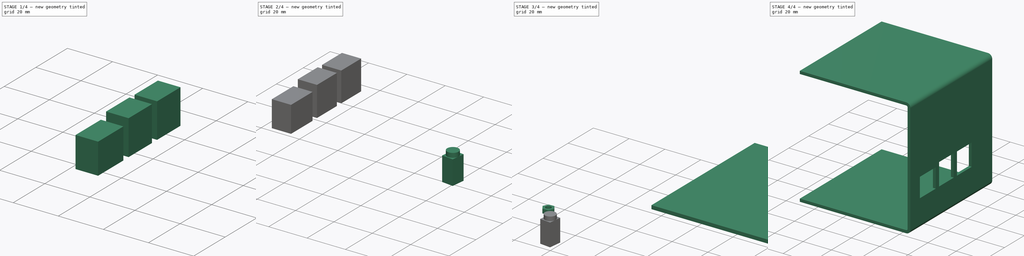
[diagram: build sequence overview — one tinted view per stage of 4, left to right]
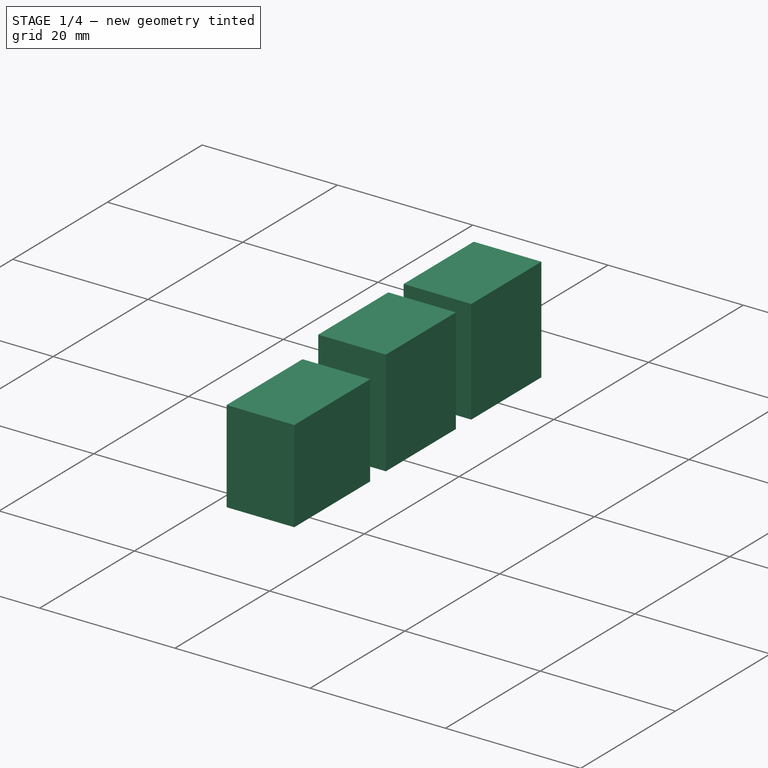
[diagram: stage 1 of 4 — iso view after this stage's code; geometry added in this stage tinted green]
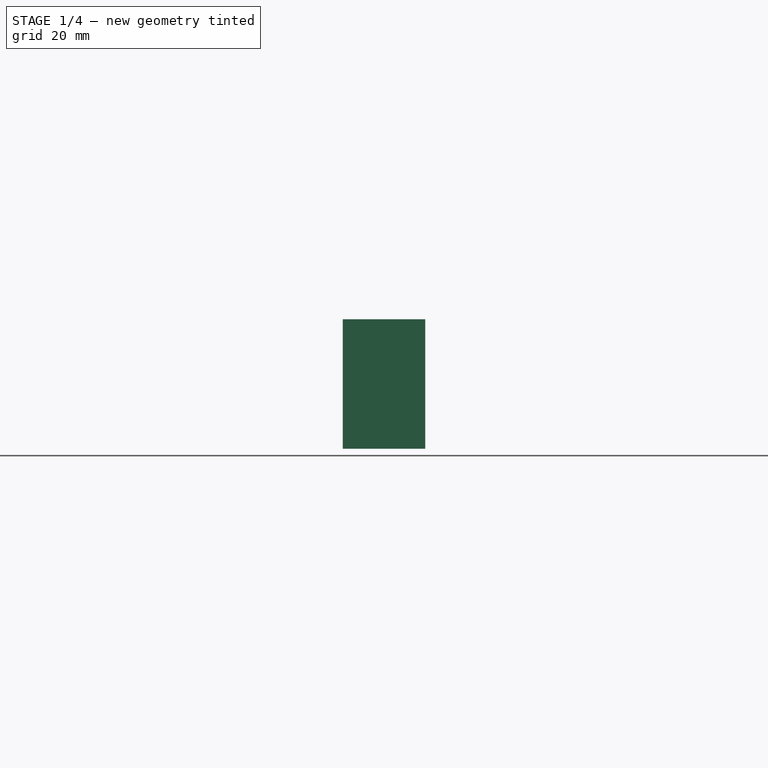
[diagram: stage 1 of 4 — front view after this stage's code; geometry added in this stage tinted green]
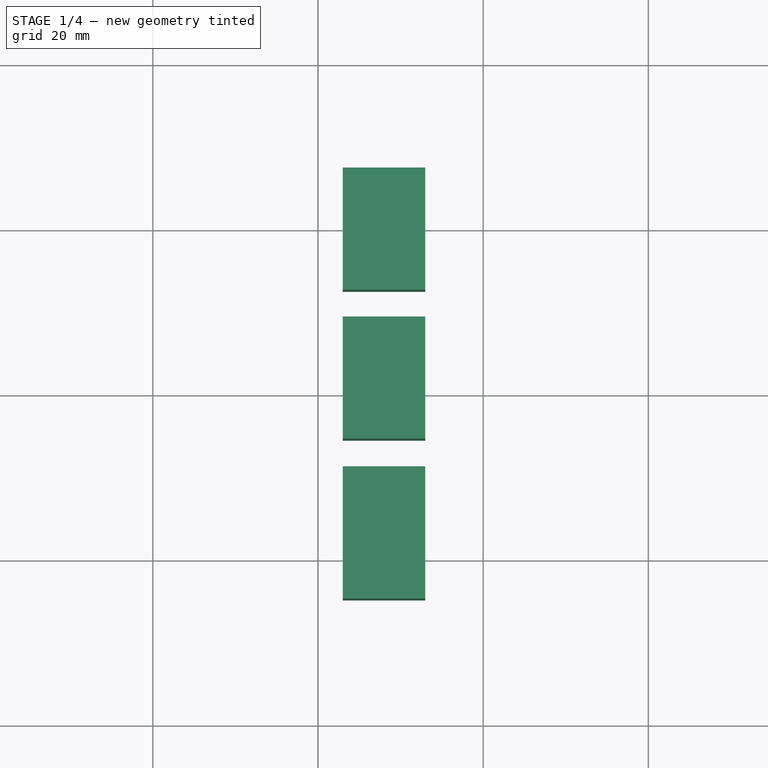
[diagram: stage 1 of 4 — top view after this stage's code; geometry added in this stage tinted green]
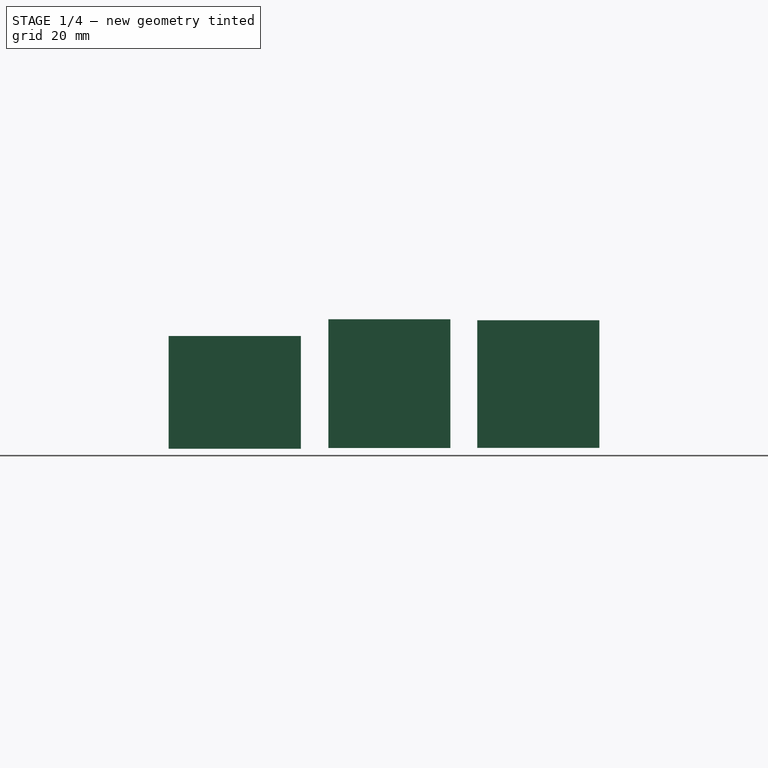
[diagram: stage 1 of 4 — right view after this stage's code; geometry added in this stage tinted green]
FCSTD DOCUMENT  (FreeCAD 0.17R5235 (Git shallow))
Label: assembly
License: All rights reserved
LicenseURL: http://en.wikipedia.org/wiki/All_rights_reserved
objects: App::FeaturePython×38, Part::FeaturePython×31, Sketcher::SketchObject×4, App::Link×3, PartDesign::Pad×2, PartDesign::FeaturePython×2, PartDesign::Body×2, TechDraw::DrawViewDimension×2, Part::Box×1, Part::Cylinder×1, Part::Extrusion×1, PartDesign::SubShapeBinder×1, Part::Cut×1, Spreadsheet::Sheet×1, TechDraw::DrawSVGTemplate×1, Part::Feature×1, TechDraw::DrawViewPart×1, TechDraw::DrawPage×1
note: 46 computed .brp shape members not serialized (recipe doc carries the construction recipe); baked Part::Feature solids carry a one-line shape summary decoded from their .brp

FEATURE [Part::FeaturePython] case2_01  # a2plus imported part (geometry in sourceFile) (typed FeaturePython)
  fixedPosition = true
  sourceFile = <userpath>/curr-projects/scada-gateway-hardware/case2/case2.fcstd
  timeLastImport = 1.52354e+09
  updateColors = true
FEATURE [Part::FeaturePython] Parts002  # WARN: FeaturePython — macro-defined, semantics opaque (R4)
  Group = -> [Box,Cylinder]
  GroupMode = 0
FEATURE [App::FeaturePython] ElementLink014  # link proxy (typed FeaturePython)
  LinkTransform = true
  LinkedObject = -> Elements002 [$Element019.]
FEATURE [Part::FeaturePython] Element019  # link proxy (typed FeaturePython)
  Detach = false
  LinkTransform = true
  LinkedObject = -> Parts002 [Cylinder.Face3]
FEATURE [App::FeaturePython] ElementLink015  # link proxy (typed FeaturePython)
  LinkTransform = true
  LinkedObject = -> Elements002 [$Element020.]
FEATURE [App::FeaturePython] Constraint007  label="PlaneCoincident004"  # WARN: FeaturePython — macro-defined, semantics opaque (R4)
  Angle = 0
  AnglePitch = 0
  AngleRoll = 0
  Cascade = false
  Disabled = false
  Group = -> [ElementLink014,ElementLink015]
  LockAngle = false
  Multiply = false
  OffsetX = 0
  OffsetY = 0
  _ConstraintType = 35
FEATURE [App::FeaturePython] Constraints002  # WARN: FeaturePython — macro-defined, semantics opaque (R4)
  Group = -> [Constraint007]
FEATURE [Part::FeaturePython] Element020  # link proxy (typed FeaturePython)
  Detach = false
  LinkTransform = true
  LinkedObject = -> Parts002 [Box.Face6]
FEATURE [App::FeaturePython] ElementLink016  # link proxy (typed FeaturePython)
  LinkTransform = true
  LinkedObject = -> Parts [Assembly002.Elements002.$Element021.]
FEATURE [Part::FeaturePython] Element021  # link proxy (typed FeaturePython)
  Detach = false
  LinkTransform = true
  LinkedObject = -> Parts002 [Box.Face1]
FEATURE [App::FeaturePython] ElementLink017  # link proxy (typed FeaturePython)
  LinkTransform = true
  LinkedObject = -> Elements [$Element002.]
FEATURE [App::FeaturePython] Constraint008  label="PlaneAlignment002"  # WARN: FeaturePython — macro-defined, semantics opaque (R4)
  Angle = 0
  AnglePitch = 0
  AngleRoll = 0
  Cascade = false
  Disabled = false
  Group = -> [ElementLink016,ElementLink017]
  LockAngle = false
  _ConstraintType = 37
FEATURE [App::FeaturePython] ElementLink018  # link proxy (typed FeaturePython)
  LinkTransform = true
  LinkedObject = -> Parts [Assembly002.Elements002.$Element020.]
FEATURE [App::FeaturePython] ElementLink019  # link proxy (typed FeaturePython)
  LinkTransform = true
  LinkedObject = -> Elements [$Element022.]
FEATURE [App::FeaturePython] Constraint009  label="PlaneAlignment003"  # WARN: FeaturePython — macro-defined, semantics opaque (R4)
  Angle = 0
  AnglePitch = 0
  AngleRoll = 0
  Cascade = false
  Disabled = false
  Group = -> [ElementLink018,ElementLink019]
  LockAngle = false
  _ConstraintType = 37
FEATURE [Part::FeaturePython] Element022  # link proxy (typed FeaturePython)
  Detach = false
  LinkTransform = true
  LinkedObject = -> Parts [case2_01.Face78]
FEATURE [App::FeaturePython] ElementLink020  # link proxy (typed FeaturePython)
  LinkTransform = true
  LinkedObject = -> Parts [Assembly002.Elements002.$Element023.]
FEATURE [Part::FeaturePython] Element023  # link proxy (typed FeaturePython)
  Detach = false
  LinkTransform = true
  LinkedObject = -> Parts002 [Box.Face4]
FEATURE [App::FeaturePython] Elements002  # WARN: FeaturePython — macro-defined, semantics opaque (R4)
  Group = -> [Element019,Element020,Element021,Element023]
FEATURE [Part::FeaturePython] Assembly002  label="audio_jack"  # WARN: FeaturePython — macro-defined, semantics opaque (R4)
  AutoRelax = false
  BuildShape = 0
  Freeze = false
  Group = -> [Constraints002,Elements002,Parts002]
  Placement = pos=(-105.6,-27.0517,4.6) rot=(-0.532824,0.598372,-0.598372;4.12071rad)
  Verbose = false
  _SolverType = 1
FEATURE [App::FeaturePython] ElementLink021  # link proxy (typed FeaturePython)
  LinkTransform = true
  LinkedObject = -> Elements [$Element024.]
FEATURE [App::FeaturePython] Constraint010  label="PlaneAlignment004"  # WARN: FeaturePython — macro-defined, semantics opaque (R4)
  Angle = 0
  AnglePitch = 0
  AngleRoll = 0
  Cascade = false
  Disabled = false
  Group = -> [ElementLink020,ElementLink021]
  LockAngle = false
  _ConstraintType = 37
FEATURE [Part::FeaturePython] Element024  # link proxy (typed FeaturePython)
  Detach = false
  LinkTransform = true
  LinkedObject = -> Parts [case2_01.Face132]
FEATURE [App::FeaturePython] ElementLink023  # link proxy (typed FeaturePython)
  LinkTransform = true
  LinkedObject = -> Elements [$Element008.]
FEATURE [App::FeaturePython] ElementLink022  # link proxy (typed FeaturePython)
  LinkTransform = true
  LinkedObject = -> Elements [$Element025.]
FEATURE [App::FeaturePython] Constraint011  label="PlaneAlignment005"  # WARN: FeaturePython — macro-defined, semantics opaque (R4)
  Angle = 0
  AnglePitch = 0
  AngleRoll = 0
  Cascade = false
  Disabled = false
  Group = -> [ElementLink022,ElementLink023]
  LockAngle = false
  _ConstraintType = 37
FEATURE [App::FeaturePython] Constraints  # WARN: FeaturePython — macro-defined, semantics opaque (R4)
  Group = -> [Constraint001,Constraint,Constraint003,Constraint004,Constraint005,Constraint006,Constraint008,Constraint009,Constraint010,Constraint011]
FEATURE [Part::FeaturePython] Element025  # link proxy (typed FeaturePython)
  Detach = false
  LinkTransform = true
  LinkedObject = -> Parts [Body.Bend001.Face12]
FEATURE [App::FeaturePython] Elements  # WARN: FeaturePython — macro-defined, semantics opaque (R4)
  Group = -> [Element,Element001,Element002,Element003,Element004,Element005,Element008,Element009,Element010,Element011,Element012,Element013,Element014,Element015,Element016,Element017,Element018,Element022,Element024,Element025]
FEATURE [Sketcher::SketchObject] Sketch002
  LastGeoID = 12
  MapMode = 5
  Placement = pos=(-72.0064,0,0) rot=(0.57735,0.57735,0.57735;2.0944rad)
  Support = -> [case2_01]
  sketch-geometry (12):
    g0: LineSegment StartX=-24.7907 StartY=15.0855 StartZ=0 EndX=-8.76421 EndY=15.0855 EndZ=0
    g1: LineSegment StartX=-8.76421 StartY=15.0855 StartZ=0 EndX=-8.76421 EndY=1.42918 EndZ=0
    g2: LineSegment StartX=-8.76421 StartY=1.42918 StartZ=0 EndX=-24.7907 EndY=1.42918 EndZ=0
    g3: LineSegment StartX=-24.7907 StartY=1.42918 StartZ=0 EndX=-24.7907 EndY=15.0855 EndZ=0
    g4: LineSegment StartX=-5.4462 StartY=17.1021 StartZ=0 EndX=9.33933 EndY=17.1021 EndZ=0
    g5: LineSegment StartX=9.33933 StartY=17.1021 StartZ=0 EndX=9.33933 EndY=1.51377 EndZ=0
    g6: LineSegment StartX=9.33933 StartY=1.51377 StartZ=0 EndX=-5.4462 EndY=1.51377 EndZ=0
    g7: LineSegment StartX=-5.4462 StartY=1.51377 StartZ=0 EndX=-5.4462 EndY=17.1021 EndZ=0
    g8: LineSegment StartX=12.5848 StartY=16.9799 StartZ=0 EndX=27.3824 EndY=16.9799 EndZ=0
    g9: LineSegment StartX=27.3824 StartY=16.9799 StartZ=0 EndX=27.3824 EndY=1.53272 EndZ=0
    g10: LineSegment StartX=27.3824 StartY=1.53272 StartZ=0 EndX=12.5848 EndY=1.53272 EndZ=0
    g11: LineSegment StartX=12.5848 StartY=1.53272 StartZ=0 EndX=12.5848 EndY=16.9799 EndZ=0
  constraints (24):
    c: Coincident(g0,g1)
    c: Coincident(g1,g2)
    c: Coincident(g2,g3)
    c: Coincident(g3,g0)
    c: Horizontal(g0)
    c: Horizontal(g2)
    c: Vertical(g1)
    c: Vertical(g3)
    c: Coincident(g4,g5)
    c: Coincident(g5,g6)
    c: Coincident(g6,g7)
    c: Coincident(g7,g4)
    c: Horizontal(g4)
    c: Horizontal(g6)
    c: Vertical(g5)
    c: Vertical(g7)
    c: Coincident(g8,g9)
    c: Coincident(g9,g10)
    c: Coincident(g10,g11)
    c: Coincident(g11,g8)
    c: Horizontal(g8)
    c: Horizontal(g10)
    c: Vertical(g9)
    c: Vertical(g11)
FEATURE [Part::Extrusion] Extrude  label="panel-cut"
  Base = -> Sketch002
  Dir = (1,0,0)
  DirMode = 2
  FaceMakerClass = Part::FaceMakerBullseye
  LengthFwd = 10
  LengthRev = 0
  Solid = true
  Symmetric = true
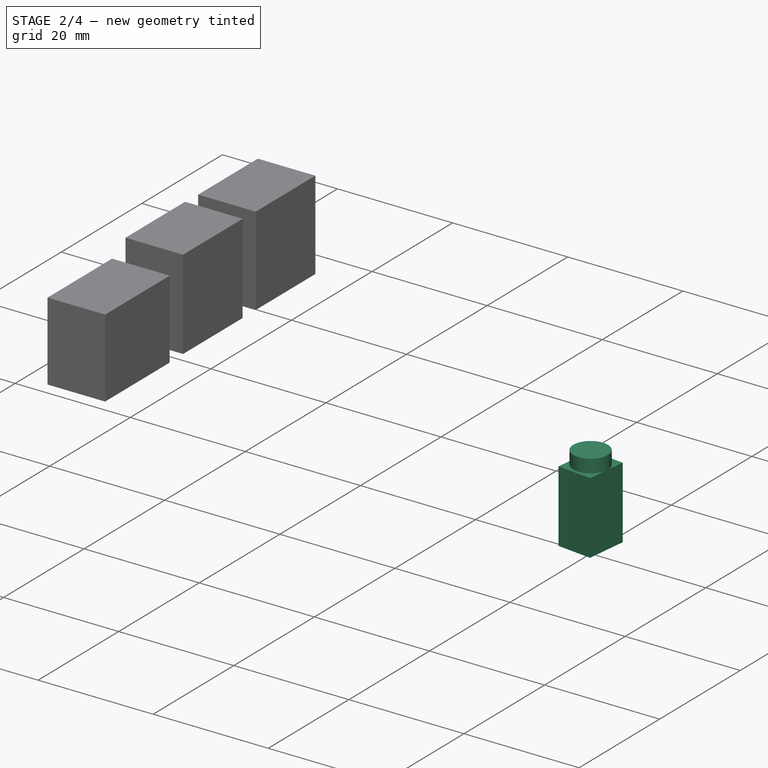
[diagram: stage 2 of 4 — iso view after this stage's code; geometry added in this stage tinted green]
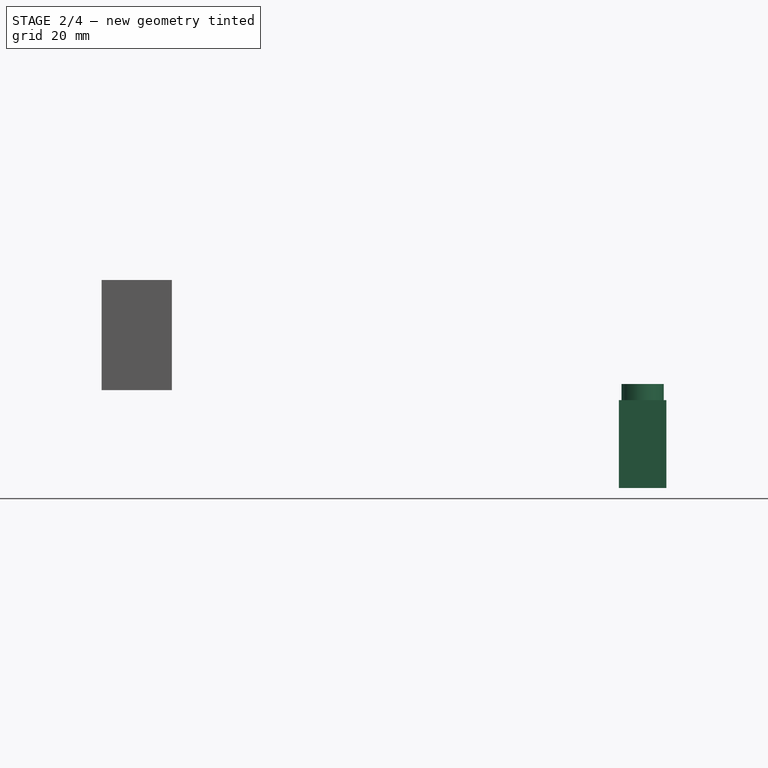
[diagram: stage 2 of 4 — front view after this stage's code; geometry added in this stage tinted green]
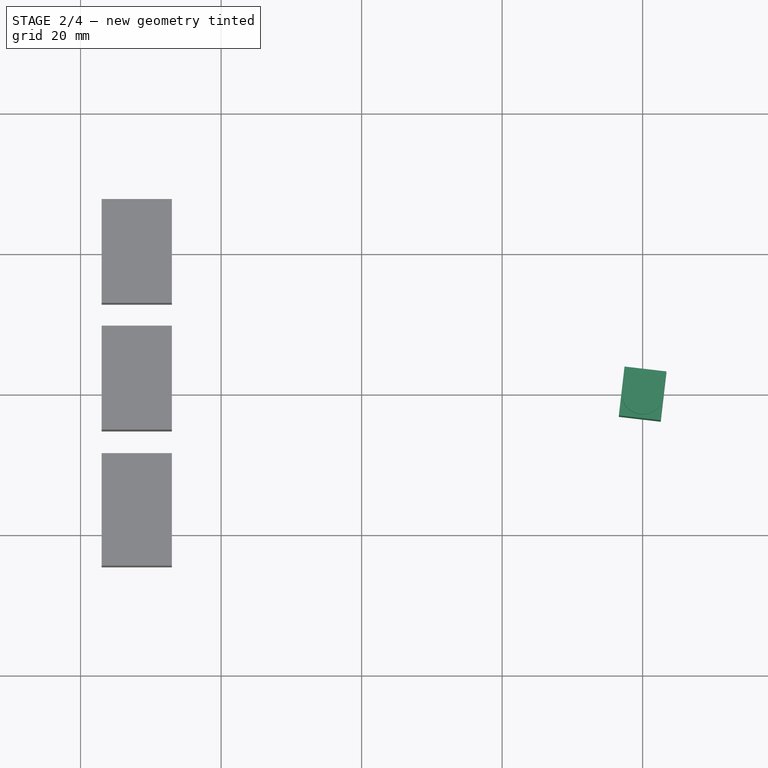
[diagram: stage 2 of 4 — top view after this stage's code; geometry added in this stage tinted green]
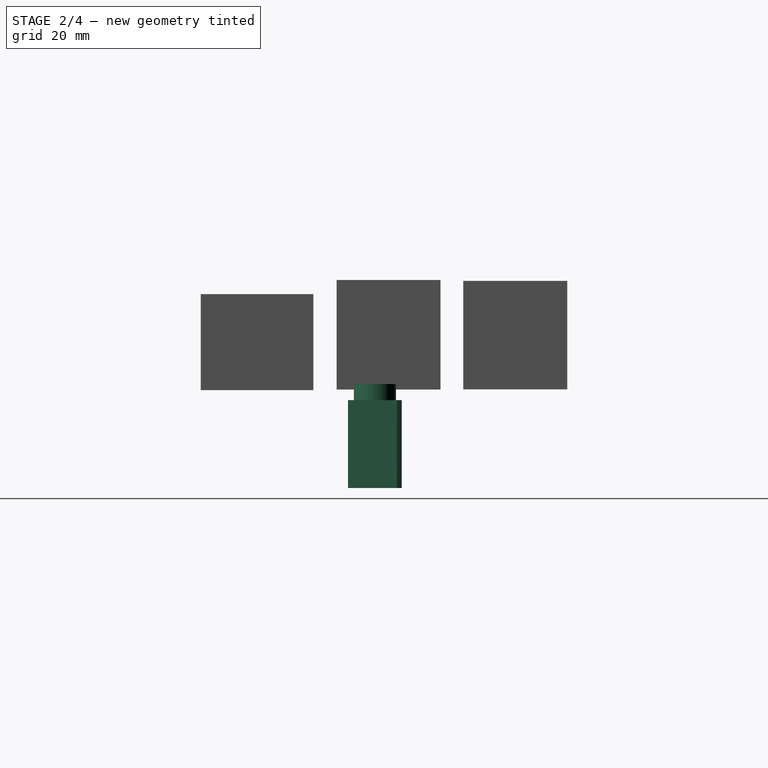
[diagram: stage 2 of 4 — right view after this stage's code; geometry added in this stage tinted green]
FEATURE [PartDesign::Body] Body  label="Panel"
  Group = -> [Sketch,Pad,Bend,Bend001]
  Origin = -> Origin
  Placement = pos=(-72.1004,-14.9704,-4.29313) rot=(0,-1,0;1.5708rad)
  Tip = -> Bend001
FEATURE [Part::FeaturePython] Element  # link proxy (typed FeaturePython)
  Detach = false
  LinkTransform = true
  LinkedObject = -> Parts [case2_01.Face1472]
FEATURE [Part::FeaturePython] Element001  # link proxy (typed FeaturePython)
  Detach = false
  LinkTransform = true
  LinkedObject = -> Parts [Body.Bend001.Face8]
FEATURE [App::FeaturePython] ElementLink002  # link proxy (typed FeaturePython)
  LinkTransform = true
  LinkedObject = -> Elements [$Element002.]
FEATURE [App::FeaturePython] Constraint001  label="Locked"  # WARN: FeaturePython — macro-defined, semantics opaque (R4)
  Disabled = false
  Group = -> [ElementLink002]
  _ConstraintType = 0
FEATURE [Part::FeaturePython] Element002  # link proxy (typed FeaturePython)
  Detach = false
  LinkTransform = true
  LinkedObject = -> Parts [case2_01.Face17]
FEATURE [Part::FeaturePython] Element003  # link proxy (typed FeaturePython)
  Detach = false
  LinkTransform = true
  LinkedObject = -> Parts [Body.Bend001.Face4]
FEATURE [Part::FeaturePython] Element004  # link proxy (typed FeaturePython)
  Detach = false
  LinkTransform = true
  LinkedObject = -> Parts [case2_01.Face1326]
FEATURE [Part::FeaturePython] Element005  # link proxy (typed FeaturePython)
  Detach = false
  LinkTransform = true
  LinkedObject = -> Parts [case2_01.Face1512]
FEATURE [Part::FeaturePython] Element008  # link proxy (typed FeaturePython)
  Detach = false
  LinkTransform = true
  LinkedObject = -> Parts [case2_01.Face40]
FEATURE [Part::Box] Box  label="mycube"
  AttacherType = Attacher::AttachEngine3D
  Height = 12.5
  Length = 6
  Placement = pos=(-3.38418,-3.13007,-12.5) rot=(0,0,-1;0.115761rad)
  Width = 7
FEATURE [PartDesign::Body] Body001  label="3mm_nut"
  Group = -> [Sketch001,Pad001]
  Origin = -> Origin001
  Placement = pos=(-148.743,-24.0479,-2.35) rot=(0,0,1;0.762604rad)
  Tip = -> Pad001
FEATURE [App::Link] Link002  label="Link002_3mm_nut"
  LinkPlacement = pos=(-92.2552,-27.8763,-2.35) rot=(0,0,1;0.154596rad)
  LinkedObject = -> Body001
  Placement = pos=(-92.2552,-27.8763,-2.35) rot=(0,0,1;0.154596rad)
FEATURE [App::Link] Link003  label="Link003_3mm_nut"
  LinkPlacement = pos=(-155.143,18.588,-2.35) rot=(0,0,-1;0.66938rad)
  LinkedObject = -> Body001
  Placement = pos=(-155.143,18.588,-2.35) rot=(0,0,-1;0.66938rad)
FEATURE [Part::FeaturePython] Element010  # link proxy (typed FeaturePython)
  Detach = false
  LinkTransform = true
  LinkedObject = -> Parts [Body001.Pad001.Face9]
FEATURE [App::FeaturePython] ElementLink006  # link proxy (typed FeaturePython)
  LinkTransform = true
  LinkedObject = -> Elements [$Element011.]
FEATURE [Part::FeaturePython] Element011  # link proxy (typed FeaturePython)
  Detach = false
  LinkTransform = true
  LinkedObject = -> Parts [Body001.Pad001.Edge21]
FEATURE [App::FeaturePython] ElementLink007  # link proxy (typed FeaturePython)
  LinkTransform = true
  LinkedObject = -> Elements [$Element012.]
FEATURE [App::FeaturePython] Constraint003  label="PlaneCoincident"  # WARN: FeaturePython — macro-defined, semantics opaque (R4)
  Angle = 0
  AnglePitch = 0
  AngleRoll = 0
  Cascade = false
  Disabled = false
  Group = -> [ElementLink006,ElementLink007]
  LockAngle = false
  Multiply = false
  OffsetX = 0
  OffsetY = 0
  _ConstraintType = 35
FEATURE [Part::FeaturePython] Element012  # link proxy (typed FeaturePython)
  Detach = false
  LinkTransform = true
  LinkedObject = -> Parts [case2_01.Edge5100]
FEATURE [App::FeaturePython] ElementLink008  # link proxy (typed FeaturePython)
  LinkTransform = true
  LinkedObject = -> Elements [$Element013.]
FEATURE [Part::FeaturePython] Element013  # link proxy (typed FeaturePython)
  Detach = false
  LinkTransform = true
  LinkedObject = -> Parts [Link002.Pad001.Edge21]
FEATURE [App::FeaturePython] ElementLink009  # link proxy (typed FeaturePython)
  LinkTransform = true
  LinkedObject = -> Elements [$Element014.]
FEATURE [App::FeaturePython] Constraint004  label="PlaneCoincident001"  # WARN: FeaturePython — macro-defined, semantics opaque (R4)
  Angle = 0
  AnglePitch = 0
  AngleRoll = 0
  Cascade = false
  Disabled = false
  Group = -> [ElementLink008,ElementLink009]
  LockAngle = false
  Multiply = false
  OffsetX = 0
  OffsetY = 0
  _ConstraintType = 35
FEATURE [Part::FeaturePython] Element014  # link proxy (typed FeaturePython)
  Detach = false
  LinkTransform = true
  LinkedObject = -> Parts [case2_01.Edge5028]
FEATURE [App::FeaturePython] ElementLink010  # link proxy (typed FeaturePython)
  LinkTransform = true
  LinkedObject = -> Elements [$Element015.]
FEATURE [Part::FeaturePython] Element015  # link proxy (typed FeaturePython)
  Detach = false
  LinkTransform = true
  LinkedObject = -> Parts [Link003.Pad001.Edge21]
FEATURE [App::FeaturePython] ElementLink011  # link proxy (typed FeaturePython)
  LinkTransform = true
  LinkedObject = -> Elements [$Element016.]
FEATURE [App::FeaturePython] Constraint005  label="PlaneCoincident002"  # WARN: FeaturePython — macro-defined, semantics opaque (R4)
  Angle = 0
  AnglePitch = 0
  AngleRoll = 0
  Cascade = false
  Disabled = false
  Group = -> [ElementLink010,ElementLink011]
  LockAngle = false
  Multiply = false
  OffsetX = 0
  OffsetY = 0
  _ConstraintType = 35
FEATURE [Part::FeaturePython] Element016  # link proxy (typed FeaturePython)
  Detach = false
  LinkTransform = true
  LinkedObject = -> Parts [case2_01.Edge3892]
FEATURE [App::FeaturePython] ElementLink012  # link proxy (typed FeaturePython)
  LinkTransform = true
  LinkedObject = -> Elements [$Element017.]
FEATURE [Part::FeaturePython] Element017  # link proxy (typed FeaturePython)
  Detach = false
  LinkTransform = true
  LinkedObject = -> Parts [Link001.Pad001.Edge21]
FEATURE [App::FeaturePython] ElementLink013  # link proxy (typed FeaturePython)
  LinkTransform = true
  LinkedObject = -> Elements [$Element018.]
FEATURE [App::FeaturePython] Constraint006  label="PlaneCoincident003"  # WARN: FeaturePython — macro-defined, semantics opaque (R4)
  Angle = 0
  AnglePitch = 0
  AngleRoll = 0
  Cascade = false
  Disabled = false
  Group = -> [ElementLink012,ElementLink013]
  LockAngle = false
  Multiply = false
  OffsetX = 0
  OffsetY = 0
  _ConstraintType = 35
FEATURE [Part::FeaturePython] Element018  # link proxy (typed FeaturePython)
  Detach = false
  LinkTransform = true
  LinkedObject = -> Parts [case2_01.Edge3510]
FEATURE [App::Link] Link001  label="Link001_3mm_nut"
  LinkPlacement = pos=(-96.4875,18.6634,-2.35) rot=(0,0,-1;0.573375rad)
  LinkedObject = -> Body001
  Placement = pos=(-96.4875,18.6634,-2.35) rot=(0,0,-1;0.573375rad)
FEATURE [Part::Cylinder] Cylinder
  Angle = 360
  AttacherType = Attacher::AttachEngine3D
  Height = 2.3
  Radius = 3
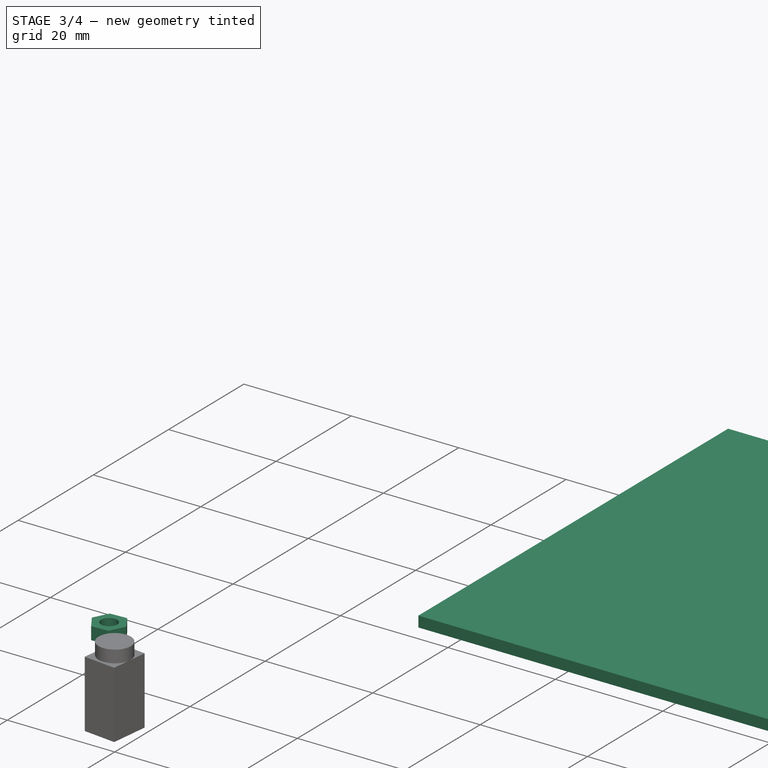
[diagram: stage 3 of 4 — iso view after this stage's code; geometry added in this stage tinted green]
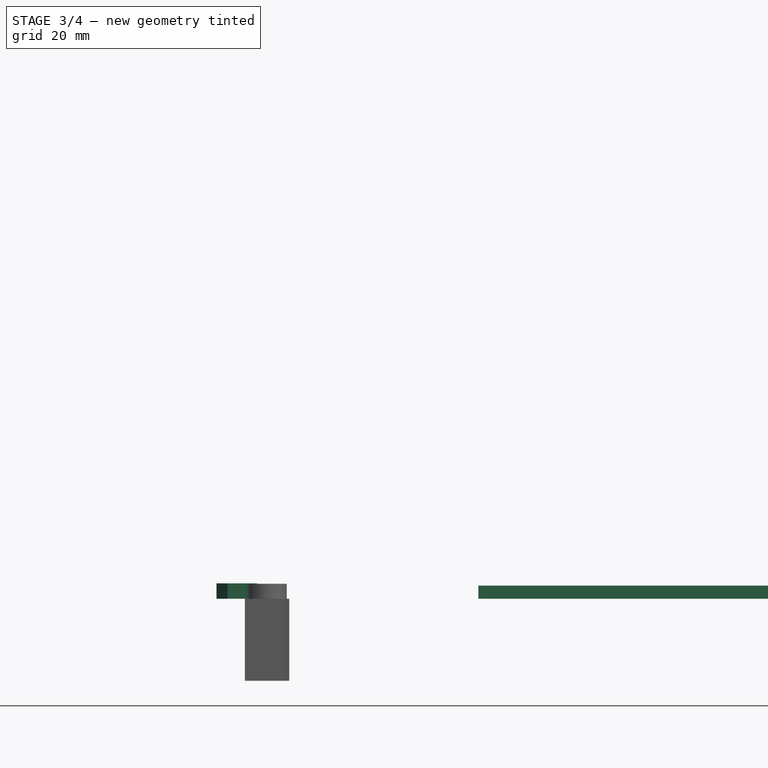
[diagram: stage 3 of 4 — front view after this stage's code; geometry added in this stage tinted green]
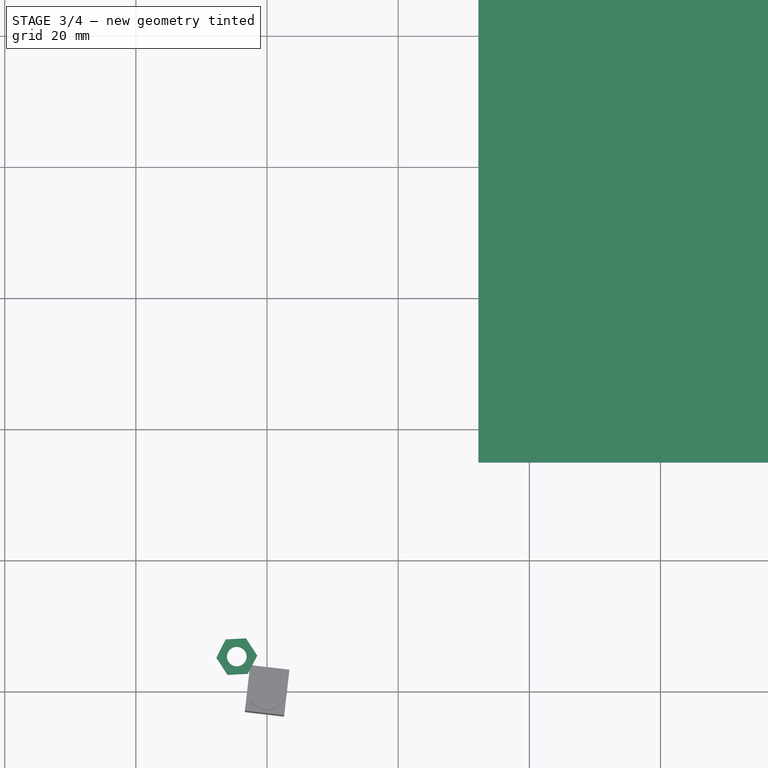
[diagram: stage 3 of 4 — top view after this stage's code; geometry added in this stage tinted green]
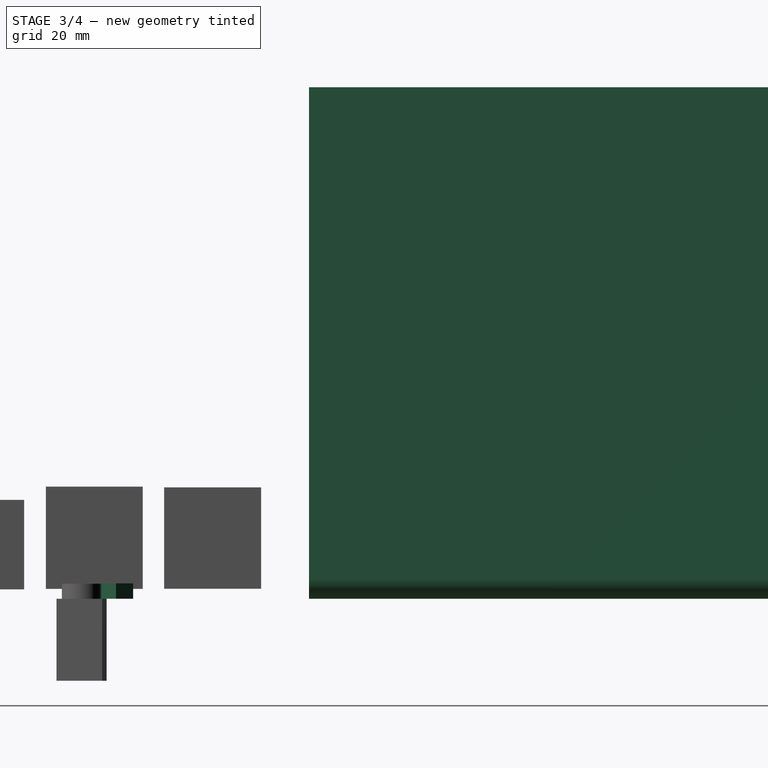
[diagram: stage 3 of 4 — right view after this stage's code; geometry added in this stage tinted green]
FEATURE [Sketcher::SketchObject] Sketch
  LastGeoID = 4
  MapMode = 2
  sketch-geometry (4):
    g0: LineSegment StartX=32.233 StartY=117.026 StartZ=0 EndX=109.673 EndY=117.026 EndZ=0
    g1: LineSegment StartX=109.673 StartY=117.026 StartZ=0 EndX=109.673 EndY=34.6898 EndZ=0
    g2: LineSegment StartX=109.673 StartY=34.6898 StartZ=0 EndX=32.233 EndY=34.6898 EndZ=0
    g3: LineSegment StartX=32.233 StartY=34.6898 StartZ=0 EndX=32.233 EndY=117.026 EndZ=0
  constraints (9):
    c: Coincident(g0,g1)
    c: Coincident(g1,g2)
    c: Coincident(g2,g3)
    c: Coincident(g3,g0)
    c: Horizontal(g0)
    c: Horizontal(g2)
    c: Vertical(g1)
    c: Vertical(g3)
    c: DistanceX(g0,g0) = 77.44  'mahmut'
FEATURE [PartDesign::Pad] Pad
  ClaimChildren = false
  Length = 2
  Length2 = 100
  Profile = -> Sketch
  Type = 0
FEATURE [PartDesign::FeaturePython] Bend  # WARN: FeaturePython — macro-defined, semantics opaque (R4)
  BaseFeature = -> Pad
  angle = 90
  baseObject = -> Pad [Face2]
  extend1 = 0
  extend2 = 0
  gap1 = 0
  gap2 = 0
  invert = false
  kfactor = 0.45
  length = 75
  miterangle1 = 0
  miterangle2 = 0
  radius = 1
  reliefType = 1
  reliefd = 1
  reliefw = 0.5
  unfold = false
  expr: length = Spreadsheet.enc_height
FEATURE [App::FeaturePython] ElementLink  # link proxy (typed FeaturePython)
  LinkTransform = true
  LinkedObject = -> Elements [$Element001.]
FEATURE [App::FeaturePython] ElementLink005  # link proxy (typed FeaturePython)
  LinkTransform = true
  LinkedObject = -> Elements [$Element009.]
FEATURE [App::FeaturePython] Constraint  label="PlaneAlignment"  # WARN: FeaturePython — macro-defined, semantics opaque (R4)
  Angle = 0
  AnglePitch = 0
  AngleRoll = 0
  Cascade = false
  Disabled = false
  Group = -> [ElementLink,ElementLink005]
  LockAngle = false
  Offset = -0.43
  _ConstraintType = 37
FEATURE [Part::FeaturePython] Element009  # link proxy (typed FeaturePython)
  Detach = false
  LinkTransform = true
  LinkedObject = -> Parts [case2_01.Face8664]
FEATURE [Sketcher::SketchObject] Sketch001
  LastGeoID = 8
  MapMode = 5
  Support = -> [XY_Plane001]
  sketch-geometry (8):
    g0: LineSegment StartX=-2.92403 StartY=2.49227 StartZ=0 EndX=-1.51483 EndY=5.25907 EndZ=0
    g1: LineSegment StartX=-1.51483 StartY=5.25907 StartZ=0 EndX=-3.20635 EndY=7.86287 EndZ=0
    g2: LineSegment StartX=-3.20635 StartY=7.86287 StartZ=0 EndX=-6.30707 EndY=7.69988 EndZ=0
    g3: LineSegment StartX=-6.30707 StartY=7.69988 StartZ=0 EndX=-7.71627 EndY=4.93308 EndZ=0
    g4: LineSegment StartX=-7.71627 StartY=4.93308 StartZ=0 EndX=-6.02475 EndY=2.32927 EndZ=0
    g5: LineSegment StartX=-6.02475 StartY=2.32927 StartZ=0 EndX=-2.92403 EndY=2.49227 EndZ=0
    g6: Circle [constr] CenterX=-4.61555 CenterY=5.09607 CenterZ=0 NormalX=0 NormalY=0 NormalZ=1 AngleXU=0 Radius=3.105
    g7: Circle CenterX=-4.61555 CenterY=5.09607 CenterZ=0 NormalX=0 NormalY=0 NormalZ=1 AngleXU=0 Radius=1.5
  constraints (16):
    c: Coincident(g0,g1)
    c: Coincident(g1,g2)
    c: Coincident(g2,g3)
    c: Coincident(g3,g4)
    c: Coincident(g4,g5)
    c: Coincident(g5,g0)
    c: Equal(g0, g1-g5) x5
    c: PointOnObject(g0,g6)
    c: PointOnObject(g1,g6)
    c: PointOnObject(g2,g6)
    c: PointOnObject(g3,g6)
    c: PointOnObject(g4,g6)
    c: PointOnObject(g5,g6)
    c: Coincident(g7,g6)
    c: Diameter(g7) = 3
    c: Diameter(g6) = 6.21
FEATURE [PartDesign::Pad] Pad001
  ClaimChildren = false
  Length = 2.35
  Length2 = 100
  Profile = -> Sketch001
  Type = 0
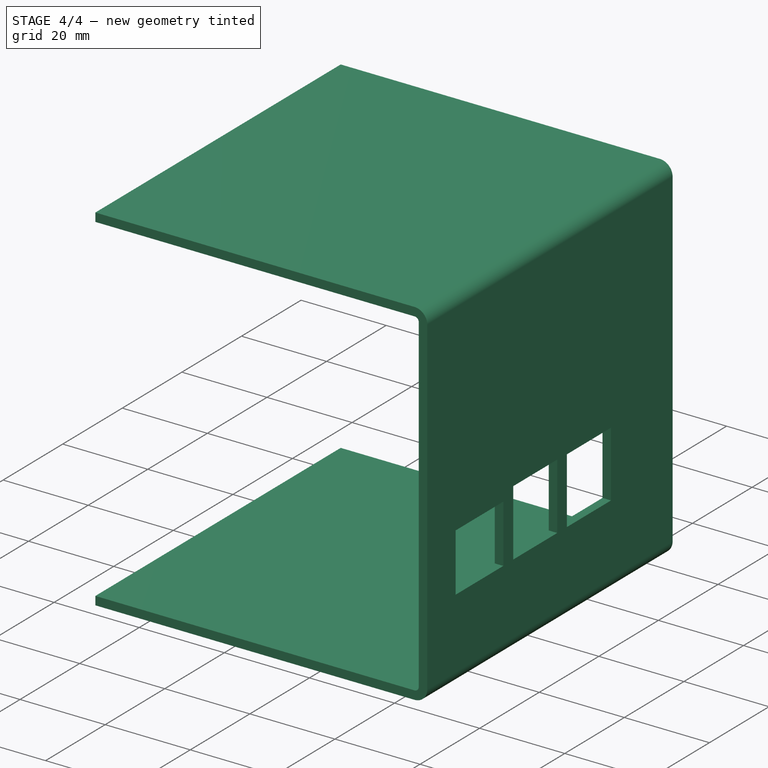
[diagram: stage 4 of 4 — iso view after this stage's code; geometry added in this stage tinted green]
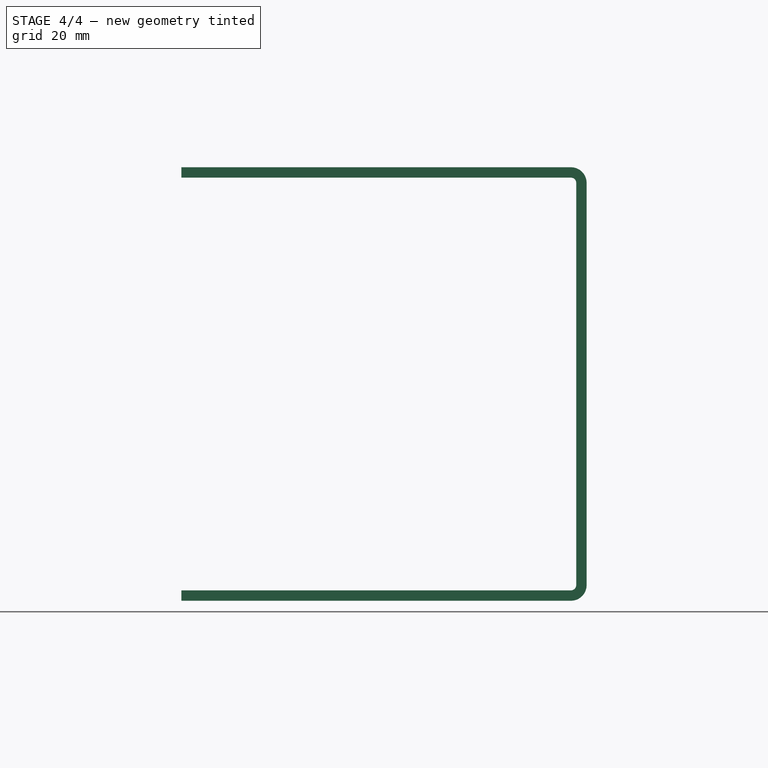
[diagram: stage 4 of 4 — front view after this stage's code; geometry added in this stage tinted green]
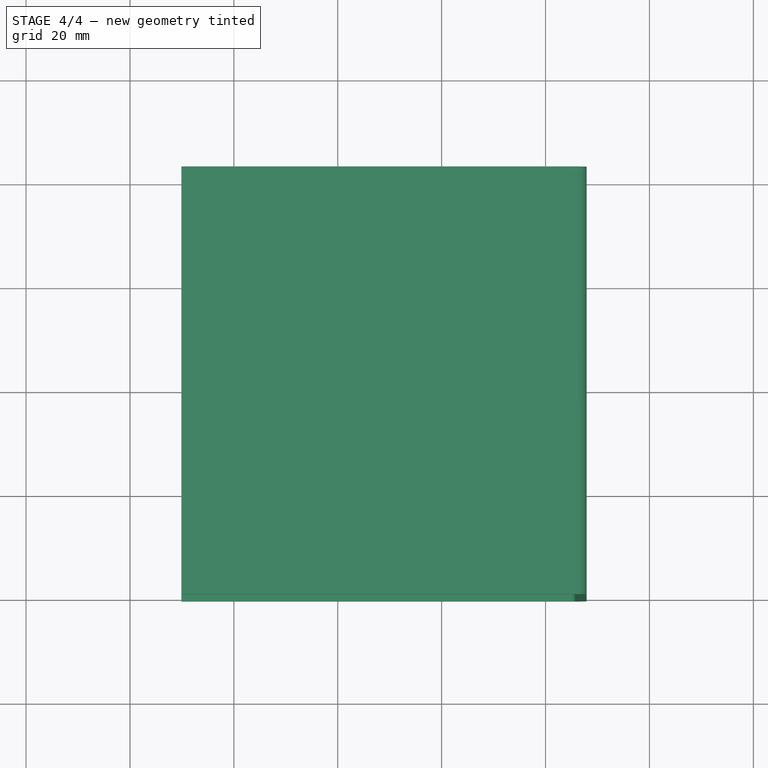
[diagram: stage 4 of 4 — top view after this stage's code; geometry added in this stage tinted green]
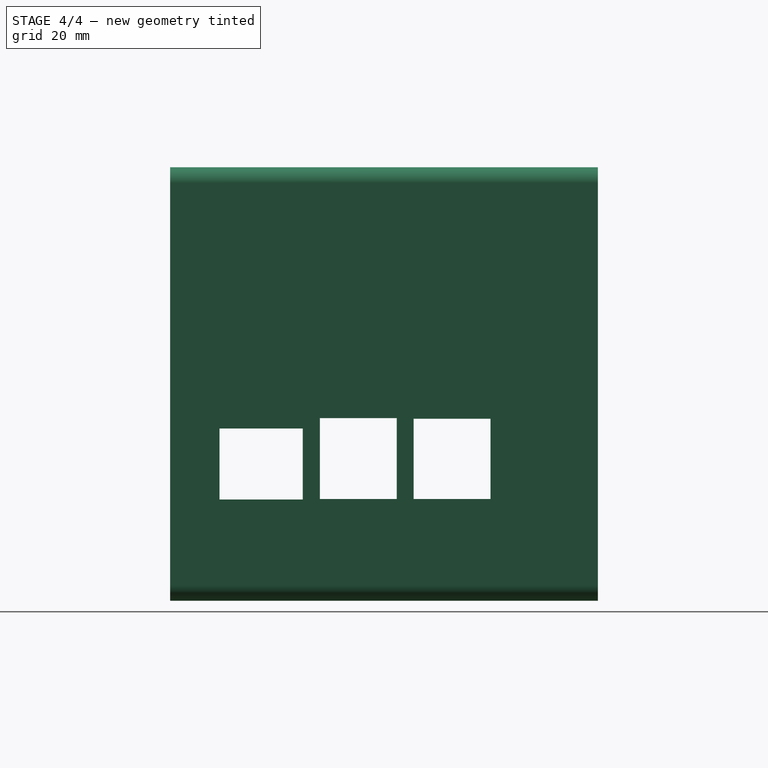
[diagram: stage 4 of 4 — right view after this stage's code; geometry added in this stage tinted green]
FEATURE [PartDesign::FeaturePython] Bend001  # WARN: FeaturePython — macro-defined, semantics opaque (R4)
  BaseFeature = -> Bend
  angle = 90
  baseObject = -> Bend [Face13]
  extend1 = 0
  extend2 = 0
  gap1 = 0
  gap2 = 0
  invert = false
  kfactor = 0.45
  length = 75
  miterangle1 = 0
  miterangle2 = 0
  radius = 1
  reliefType = 1
  reliefd = 1
  reliefw = 0.5
  unfold = false
  expr: length = Spreadsheet.enc_height
FEATURE [Part::FeaturePython] Parts  # WARN: FeaturePython — macro-defined, semantics opaque (R4)
  Group = -> [case2_01,Assembly002,Body,Body001,Link001,Link002,Link003,Extrude]
  GroupMode = 0
FEATURE [Part::FeaturePython] Assembly  # WARN: FeaturePython — macro-defined, semantics opaque (R4)
  AutoRelax = false
  BuildShape = 0
  Freeze = false
  Group = -> [Constraints,Elements,Parts]
  Placement = pos=(2.44829e-05,54,43) rot=(0,-1,0;0rad)
  Verbose = false
  _SolverType = 1
FEATURE [PartDesign::SubShapeBinder] Binder
  BindMode = 0
  ClaimChildren = false
  Fuse = true
  MakeFace = true
  PartialLoad = true
  Relative = true
  Support = -> Assembly [Parts.Extrude.]
FEATURE [Part::Cut] Cut  label="panel-part"
  Base = -> Body
  Tool = -> Binder
FEATURE [Spreadsheet::Sheet] Spreadsheet
  cells = A1=enclosure height; B1=enc_height; C1(enc_height)==75mm; B2=enc_width; C2(enc_width)==90mm
FEATURE [App::FeaturePython] Constraints003  # WARN: FeaturePython — macro-defined, semantics opaque (R4)
FEATURE [App::FeaturePython] Elements003  # WARN: FeaturePython — macro-defined, semantics opaque (R4)
FEATURE [Part::FeaturePython] Parts003  # WARN: FeaturePython — macro-defined, semantics opaque (R4)
  Group = -> [Cut,Assembly]
  GroupMode = 0
FEATURE [Part::FeaturePython] Assembly003  # WARN: FeaturePython — macro-defined, semantics opaque (R4)
  AutoRelax = false
  BuildShape = 0
  Freeze = false
  Group = -> [Constraints003,Elements003,Parts003]
  Verbose = false
  _SolverType = 1
FEATURE [TechDraw::DrawSVGTemplate] Template
  EditableTexts = Designed_by_Name=Designed by Name; Drawing_number=Drawing number; FC-Date=Date; FC-SC=Scale; FC-SH=Sheet; FC-Title=Title; Subtitle=Subtitle; Weight=Weight
  Height = 210
  Orientation = 1
  Width = 297
FEATURE [Part::Feature] Unfold
  shape: bbox 2 x 77.83 x 182.2 mm, 34 faces (baked)
FEATURE [Sketcher::SketchObject] Sketch003  label="Unfold_Sketch"
  LastGeoID = 26
  sketch-geometry (26):
    g0: LineSegment StartX=-18.3885 StartY=27.3693 StartZ=0 EndX=-68.3885 EndY=27.3693 EndZ=0
    g1: LineSegment StartX=-68.3885 StartY=27.3693 StartZ=0 EndX=-68.3885 EndY=-50.4597 EndZ=0
    g2: LineSegment StartX=-68.3885 StartY=-50.4597 StartZ=0 EndX=-18.3885 EndY=-50.4597 EndZ=0
    g3: LineSegment StartX=-16.0331 StartY=27.3693 StartZ=0 EndX=-18.3885 EndY=27.3693 EndZ=0
    g4: LineSegment StartX=-16.0331 StartY=-50.4597 StartZ=0 EndX=-18.3885 EndY=-50.4597 EndZ=0
    g5: LineSegment StartX=-16.0331 StartY=-50.4597 StartZ=0 EndX=61.4069 EndY=-50.4597 EndZ=0
    g6: LineSegment StartX=61.4069 StartY=27.3693 StartZ=0 EndX=-16.0331 EndY=27.3693 EndZ=0
    g7: LineSegment StartX=58.0855 StartY=-7.23579 StartZ=0 EndX=58.0855 EndY=8.79068 EndZ=0
    g8: LineSegment StartX=58.0855 StartY=8.79068 StartZ=0 EndX=44.4292 EndY=8.79068 EndZ=0
    g9: LineSegment StartX=44.4292 StartY=8.79068 StartZ=0 EndX=44.4292 EndY=-7.23579 EndZ=0
    g10: LineSegment StartX=44.4292 StartY=-7.23579 StartZ=0 EndX=58.0855 EndY=-7.23579 EndZ=0
    g11: LineSegment StartX=60.1021 StartY=-25.3393 StartZ=0 EndX=60.1021 EndY=-10.5538 EndZ=0
    g12: LineSegment StartX=60.1021 StartY=-10.5538 StartZ=0 EndX=44.5138 EndY=-10.5538 EndZ=0
    g13: LineSegment StartX=44.5138 StartY=-10.5538 StartZ=0 EndX=44.5138 EndY=-25.3393 EndZ=0
    g14: LineSegment StartX=44.5138 StartY=-25.3393 StartZ=0 EndX=60.1021 EndY=-25.3393 EndZ=0
    g15: LineSegment StartX=59.9799 StartY=-43.3825 StartZ=0 EndX=59.9799 EndY=-28.5848 EndZ=0
    g16: LineSegment StartX=59.9799 StartY=-28.5848 StartZ=0 EndX=44.5327 EndY=-28.5848 EndZ=0
    g17: LineSegment StartX=44.5327 StartY=-28.5848 StartZ=0 EndX=44.5327 EndY=-43.3825 EndZ=0
    g18: LineSegment StartX=44.5327 StartY=-43.3825 StartZ=0 EndX=59.9799 EndY=-43.3825 EndZ=0
    g19: LineSegment StartX=63.7623 StartY=-50.4597 StartZ=0 EndX=113.762 EndY=-50.4597 EndZ=0
    g20: LineSegment StartX=113.762 StartY=-50.4597 StartZ=0 EndX=113.762 EndY=27.3693 EndZ=0
    g21: LineSegment StartX=113.762 StartY=27.3693 StartZ=0 EndX=63.7623 EndY=27.3693 EndZ=0
    g22: LineSegment StartX=61.4069 StartY=-50.4597 StartZ=0 EndX=63.7623 EndY=-50.4597 EndZ=0
    g23: LineSegment StartX=61.4069 StartY=27.3693 StartZ=0 EndX=63.7623 EndY=27.3693 EndZ=0
    g24: LineSegment StartX=-17.2108 StartY=27.3693 StartZ=0 EndX=-17.2108 EndY=-50.4597 EndZ=0
    g25: LineSegment StartX=62.5846 StartY=-50.4597 StartZ=0 EndX=62.5846 EndY=27.3693 EndZ=0
FEATURE [TechDraw::DrawViewPart] View
  CoarseView = false
  Direction = (0,0,1)
  Focus = 100
  HardHidden = false
  IsoCount = 0
  IsoHidden = false
  IsoVisible = false
  LockPosition = false
  Perspective = false
  Rotation = 0
  ScaleType = 0
  SeamHidden = false
  SeamVisible = false
  SmoothHidden = false
  SmoothVisible = false
  Source = -> [Sketch003]
  X = 122.471
  Y = 140.064
FEATURE [TechDraw::DrawViewDimension] Dimension  label="Unnamed001"
  Arbitrary = false
  FormatSpec = %.2f
  LockPosition = false
  MeasureType = 1
  References2D = -> [View]
  Rotation = 0
  ScaleType = 0
  Type = 1
  X = -67.0184
  Y = -53.9267
FEATURE [TechDraw::DrawViewDimension] Dimension001  label="Unnamed"
  Arbitrary = false
  FormatSpec = %.2f
  LockPosition = false
  MeasureType = 1
  References2D = -> [View]
  Rotation = 0
  ScaleType = 0
  Type = 1
  X = 3.19138
  Y = -53.9849
FEATURE [TechDraw::DrawPage] Page
  KeepUpdated = true
  ProjectionType = 0
  Template = -> Template
  Views = -> [View,Dimension,Dimension001]
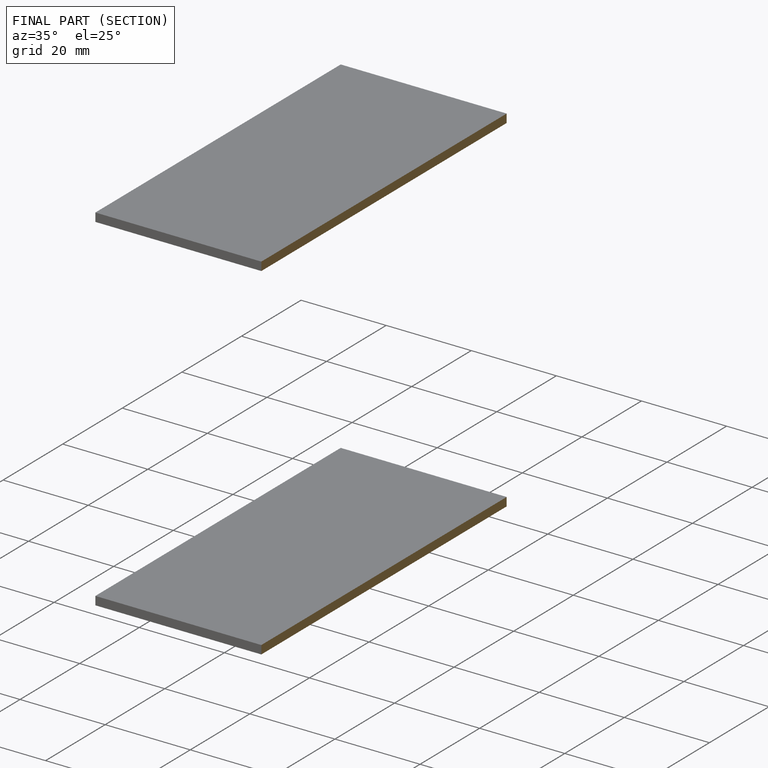
[diagram: finished part — half-section view (interior)]
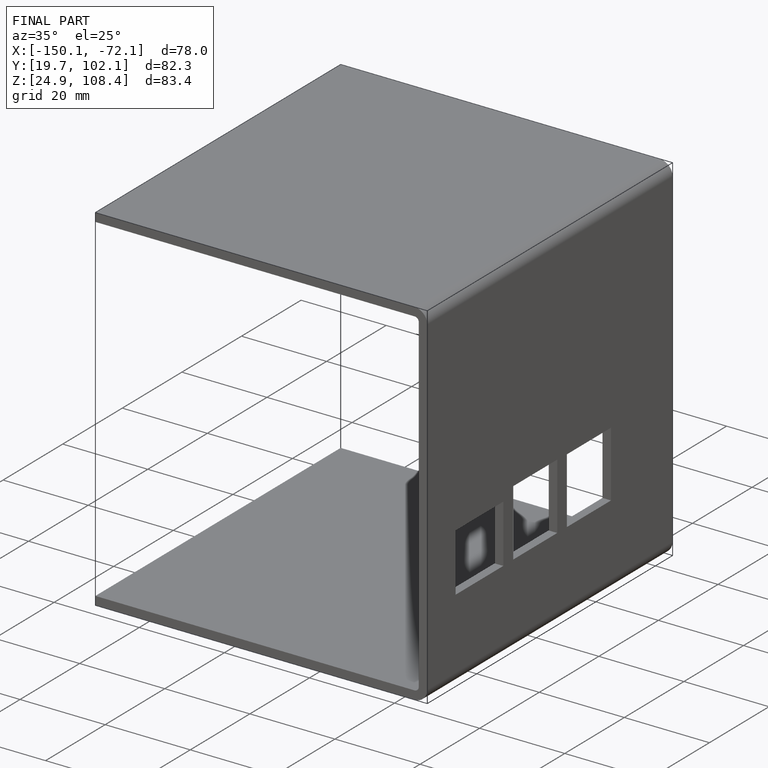
[diagram: finished part — iso view with bounding-box wireframe]
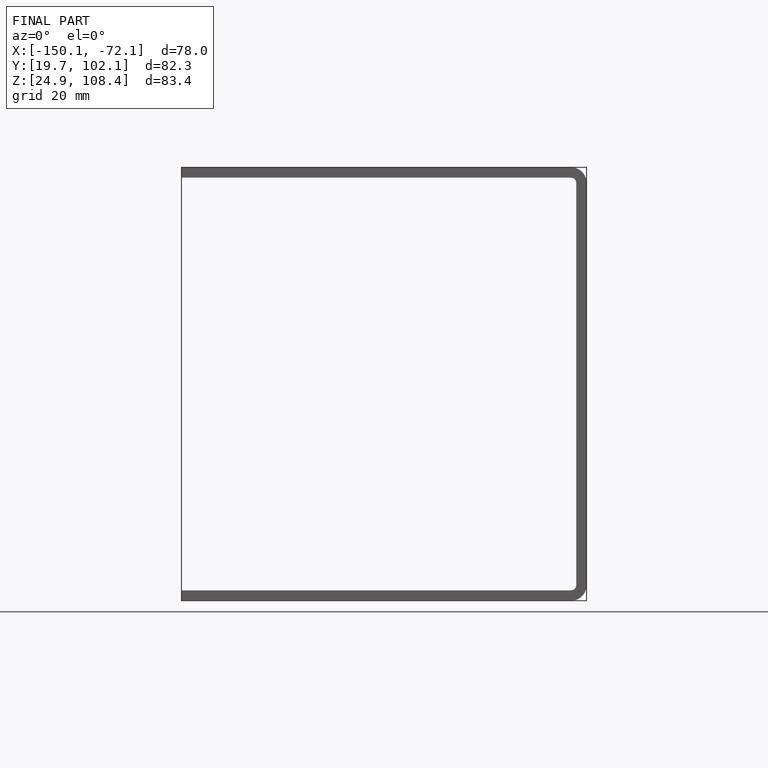
[diagram: finished part — front view with bounding-box wireframe]
